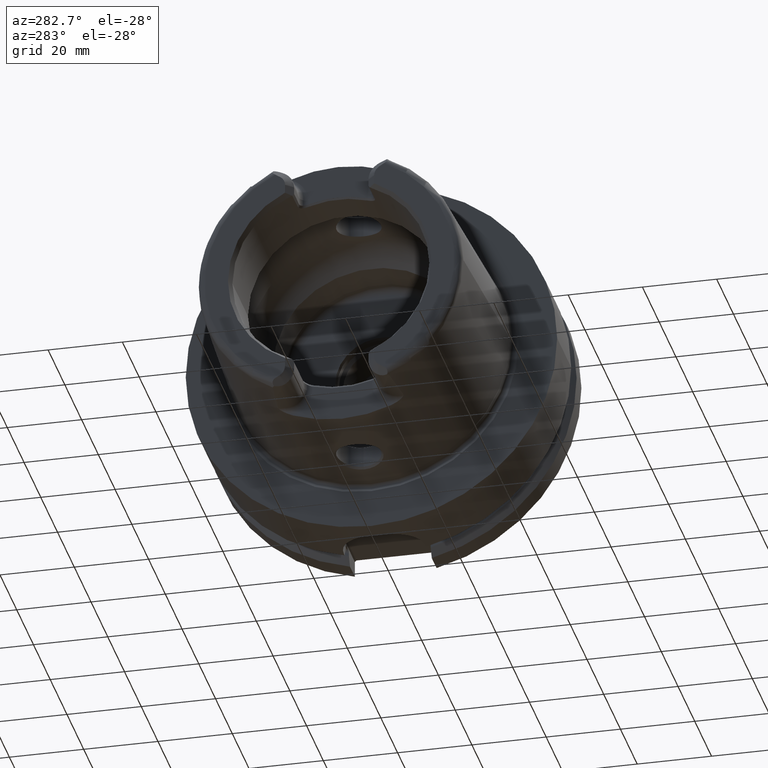
[diagram: clean part render]
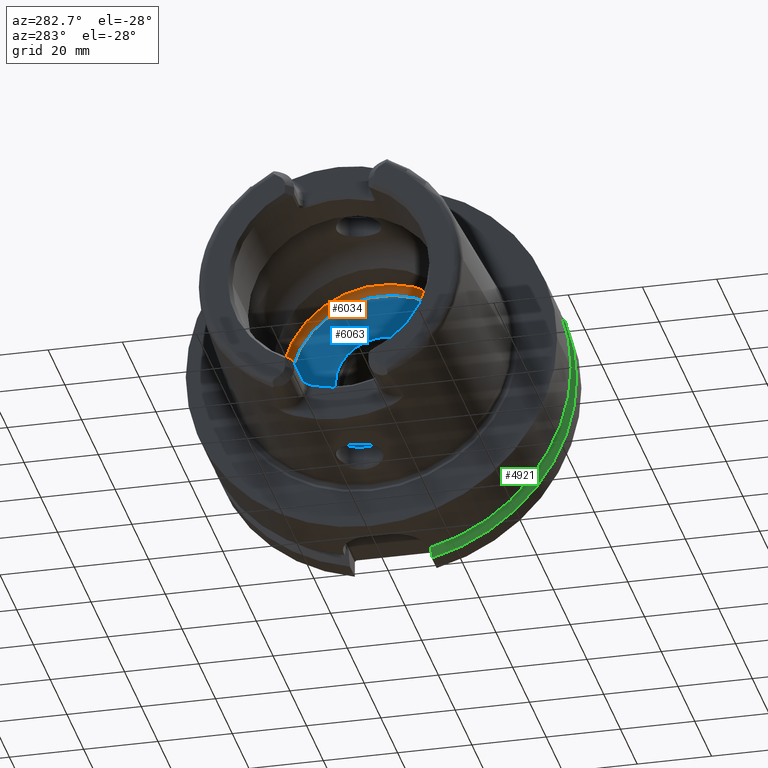
[diagram: same view with three faces highlighted in distinct colors, each labeled with its STEP entity id]
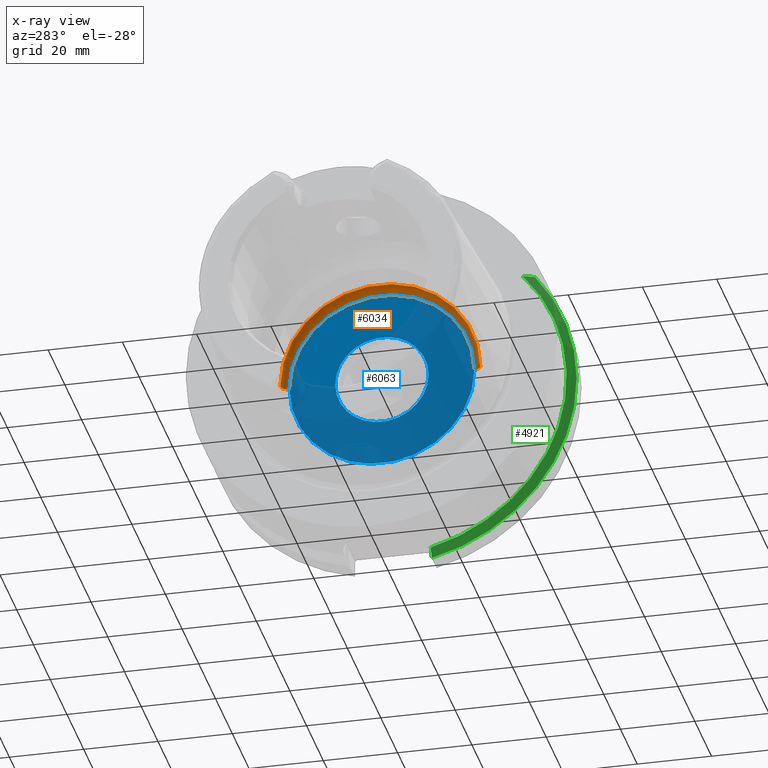
[diagram: x-ray of the same camera — body ghosted, the three highlighted faces saturated]
A machine part, auxiliary view with three faces highlighted in distinct colors.
The next image is the same camera in x-ray (body ghosted, the three faces saturated) — at least one of them is partly hidden behind the body in this view.
Their STEP definitions:

[orange] entity #6034 — the highlighted toroidal blend (fillet) surface has major radius 24.9 mm and minor (blend) radius 2 mm.
#2411=CARTESIAN_POINT('',(9.3E0,0.E0,0.E0));
#2412=DIRECTION('',(1.E0,0.E0,0.E0));
#2413=DIRECTION('',(0.E0,1.E0,0.E0));
#2414=AXIS2_PLACEMENT_3D('',#2411,#2412,#2413);
#2416=CARTESIAN_POINT('',(1.25E1,0.E0,0.E0));
#2417=DIRECTION('',(1.E0,0.E0,0.E0));
#2418=DIRECTION('',(0.E0,1.E0,0.E0));
#2419=AXIS2_PLACEMENT_3D('',#2416,#2417,#2418);
#2421=CARTESIAN_POINT('',(1.05E1,2.49E1,0.E0));
#2422=DIRECTION('',(0.E0,0.E0,1.E0));
#2423=DIRECTION('',(1.E0,0.E0,0.E0));
#2424=AXIS2_PLACEMENT_3D('',#2421,#2422,#2423);
#2431=CARTESIAN_POINT('',(1.05E1,-2.49E1,0.E0));
#2432=DIRECTION('',(0.E0,0.E0,-1.E0));
#2433=DIRECTION('',(1.E0,0.E0,0.E0));
#2434=AXIS2_PLACEMENT_3D('',#2431,#2432,#2433);
#2881=CARTESIAN_POINT('',(1.25E1,2.49E1,0.E0));
#2882=CARTESIAN_POINT('',(9.3E0,2.65E1,0.E0));
#2883=VERTEX_POINT('',#2881);
#2884=VERTEX_POINT('',#2882);
#2885=CARTESIAN_POINT('',(1.25E1,-2.49E1,0.E0));
#2886=CARTESIAN_POINT('',(9.3E0,-2.65E1,0.E0));
#2887=VERTEX_POINT('',#2885);
#2888=VERTEX_POINT('',#2886);
#6020=CARTESIAN_POINT('',(1.05E1,0.E0,0.E0));
#6021=DIRECTION('',(1.E0,0.E0,0.E0));
#6022=DIRECTION('',(0.E0,-1.E0,0.E0));
#6023=AXIS2_PLACEMENT_3D('',#6020,#6021,#6022);
#6024=TOROIDAL_SURFACE('',#6023,2.49E1,2.E0);
#6026=ORIENTED_EDGE('',*,*,#6025,.T.);
#6027=ORIENTED_EDGE('',*,*,#6015,.T.);
#6029=ORIENTED_EDGE('',*,*,#6028,.F.);
#6031=ORIENTED_EDGE('',*,*,#6030,.F.);
#6032=EDGE_LOOP('',(#6026,#6027,#6029,#6031));
#6033=FACE_OUTER_BOUND('',#6032,.F.);
#6034=ADVANCED_FACE('',(#6033),#6024,.F.);
#2415=CIRCLE('',#2414,2.65E1);
#2420=CIRCLE('',#2419,2.49E1);
#2425=CIRCLE('',#2424,2.E0);
#2435=CIRCLE('',#2434,2.E0);
#6015=EDGE_CURVE('',#2884,#2888,#2415,.T.);
#6025=EDGE_CURVE('',#2883,#2884,#2425,.T.);
#6028=EDGE_CURVE('',#2887,#2888,#2435,.T.);
#6030=EDGE_CURVE('',#2883,#2887,#2420,.T.);

[blue] entity #6063 — the highlighted planar face has unit normal (1, 0, 0).
#2416=CARTESIAN_POINT('',(1.25E1,0.E0,0.E0));
#2417=DIRECTION('',(1.E0,0.E0,0.E0));
#2418=DIRECTION('',(0.E0,1.E0,0.E0));
#2419=AXIS2_PLACEMENT_3D('',#2416,#2417,#2418);
#2426=CARTESIAN_POINT('',(1.25E1,0.E0,0.E0));
#2427=DIRECTION('',(-1.E0,0.E0,0.E0));
#2428=DIRECTION('',(0.E0,1.E0,0.E0));
#2429=AXIS2_PLACEMENT_3D('',#2426,#2427,#2428);
#2436=CARTESIAN_POINT('',(1.25E1,0.E0,0.E0));
#2437=DIRECTION('',(1.E0,0.E0,0.E0));
#2438=DIRECTION('',(0.E0,-1.E0,0.E0));
#2439=AXIS2_PLACEMENT_3D('',#2436,#2437,#2438);
#2441=CARTESIAN_POINT('',(1.25E1,0.E0,0.E0));
#2442=DIRECTION('',(1.E0,0.E0,0.E0));
#2443=DIRECTION('',(0.E0,1.E0,0.E0));
#2444=AXIS2_PLACEMENT_3D('',#2441,#2442,#2443);
#2881=CARTESIAN_POINT('',(1.25E1,2.49E1,0.E0));
#2883=VERTEX_POINT('',#2881);
#2885=CARTESIAN_POINT('',(1.25E1,-2.49E1,0.E0));
#2887=VERTEX_POINT('',#2885);
#3269=CARTESIAN_POINT('',(1.25E1,-1.25665E1,0.E0));
#3270=CARTESIAN_POINT('',(1.25E1,1.25665E1,0.E0));
#3271=VERTEX_POINT('',#3269);
#3272=VERTEX_POINT('',#3270);
#6048=CARTESIAN_POINT('',(1.25E1,0.E0,0.E0));
#6049=DIRECTION('',(1.E0,0.E0,0.E0));
#6050=DIRECTION('',(0.E0,-1.E0,0.E0));
#6051=AXIS2_PLACEMENT_3D('',#6048,#6049,#6050);
#6052=PLANE('',#6051);
#6053=ORIENTED_EDGE('',*,*,#6030,.T.);
#6054=ORIENTED_EDGE('',*,*,#6041,.F.);
#6055=EDGE_LOOP('',(#6053,#6054));
#6056=FACE_OUTER_BOUND('',#6055,.F.);
#6058=ORIENTED_EDGE('',*,*,#6057,.F.);
#6060=ORIENTED_EDGE('',*,*,#6059,.F.);
#6061=EDGE_LOOP('',(#6058,#6060));
#6062=FACE_BOUND('',#6061,.F.);
#6063=ADVANCED_FACE('',(#6056,#6062),#6052,.F.);
#2420=CIRCLE('',#2419,2.49E1);
#2430=CIRCLE('',#2429,2.49E1);
#2440=CIRCLE('',#2439,1.25665E1);
#2445=CIRCLE('',#2444,1.25665E1);
#6030=EDGE_CURVE('',#2883,#2887,#2420,.T.);
#6041=EDGE_CURVE('',#2883,#2887,#2430,.T.);
#6057=EDGE_CURVE('',#3271,#3272,#2440,.T.);
#6059=EDGE_CURVE('',#3272,#3271,#2445,.T.);

[green] entity #4921 — the highlighted conical surface has half-angle 60 deg.
#1670=CARTESIAN_POINT('',(2.1875E1,-3.571640491003E1,3.15E1));
#1671=CARTESIAN_POINT('',(2.201925574841E1,-3.604955434192E1,3.15E1));
#1672=CARTESIAN_POINT('',(2.231322476087E1,-3.672437326077E1,3.15E1));
#1673=CARTESIAN_POINT('',(2.277010201186E1,-3.776083400964E1,3.15E1));
#1674=CARTESIAN_POINT('',(2.308650936123E1,-3.847048452534E1,3.15E1));
#1675=CARTESIAN_POINT('',(2.324759526419E1,-3.882975663071E1,3.15E1));
#1677=CARTESIAN_POINT('',(2.324759526419E1,0.E0,0.E0));
#1678=DIRECTION('',(1.E0,0.E0,0.E0));
#1679=DIRECTION('',(0.E0,-7.765951326142E-1,6.3E-1));
#1680=AXIS2_PLACEMENT_3D('',#1677,#1678,#1679);
#1682=CARTESIAN_POINT('',(2.1875E1,-1.1E1,-4.633477721644E1));
#1683=CARTESIAN_POINT('',(2.202318700409E1,-1.1E1,-4.659857839127E1));
#1684=CARTESIAN_POINT('',(2.232244181881E1,-1.1E1,-4.713106867413E1));
#1685=CARTESIAN_POINT('',(2.277988963764E1,-1.1E1,-4.794432689775E1));
#1686=CARTESIAN_POINT('',(2.309072380685E1,-1.1E1,-4.849646015371E1));
#1687=CARTESIAN_POINT('',(2.324759526419E1,-1.1E1,-4.877499359303E1));
#1689=CARTESIAN_POINT('',(2.1875E1,0.E0,0.E0));
#1690=DIRECTION('',(-1.E0,0.E0,0.E0));
#1691=DIRECTION('',(0.E0,-2.309827916554E-1,-9.729578356533E-1));
#1692=AXIS2_PLACEMENT_3D('',#1689,#1690,#1691);
#3162=CARTESIAN_POINT('',(2.324759526419E1,-1.1E1,-4.877499359303E1));
#3164=VERTEX_POINT('',#3162);
#3184=CARTESIAN_POINT('',(2.1875E1,-1.1E1,-4.633477721644E1));
#3185=VERTEX_POINT('',#3184);
#3212=CARTESIAN_POINT('',(2.324759526419E1,-3.882975663071E1,3.15E1));
#3214=VERTEX_POINT('',#3212);
#3236=CARTESIAN_POINT('',(2.1875E1,-3.571640491003E1,3.15E1));
#3237=VERTEX_POINT('',#3236);
#4910=CARTESIAN_POINT('',(2.256129763210E1,0.E0,0.E0));
#4911=DIRECTION('',(1.E0,0.E0,0.E0));
#4912=DIRECTION('',(0.E0,-1.E0,0.E0));
#4913=AXIS2_PLACEMENT_3D('',#4910,#4911,#4912);
#4914=CONICAL_SURFACE('',#4913,4.881129763210E1,6.E1);
#4915=ORIENTED_EDGE('',*,*,#4430,.T.);
#4916=ORIENTED_EDGE('',*,*,#4473,.T.);
#4917=ORIENTED_EDGE('',*,*,#4624,.F.);
#4918=ORIENTED_EDGE('',*,*,#4875,.T.);
#4919=EDGE_LOOP('',(#4915,#4916,#4917,#4918));
#4920=FACE_OUTER_BOUND('',#4919,.F.);
#4921=ADVANCED_FACE('',(#4920),#4914,.T.);
#1676=B_SPLINE_CURVE_WITH_KNOTS('',3,(#1670,#1671,#1672,#1673,#1674,#1675),
.UNSPECIFIED.,.F.,.F.,(4,1,1,4),(0.E0,3.333333333333E-1,6.666666666667E-1,1.E0),
.UNSPECIFIED.);
#1681=CIRCLE('',#1680,5.E1);
#1688=B_SPLINE_CURVE_WITH_KNOTS('',3,(#1682,#1683,#1684,#1685,#1686,#1687),
.UNSPECIFIED.,.F.,.F.,(4,1,1,4),(0.E0,3.333333333333E-1,6.666666666667E-1,1.E0),
.UNSPECIFIED.);
#1693=CIRCLE('',#1692,4.762259526419E1);
#4430=EDGE_CURVE('',#3237,#3214,#1676,.T.);
#4473=EDGE_CURVE('',#3214,#3164,#1681,.T.);
#4624=EDGE_CURVE('',#3185,#3164,#1688,.T.);
#4875=EDGE_CURVE('',#3185,#3237,#1693,.T.);